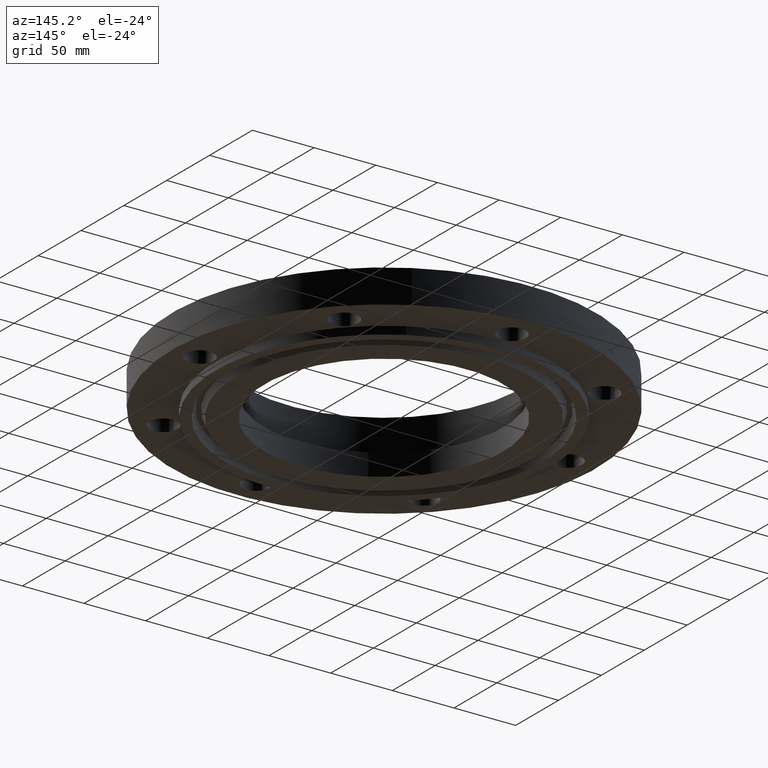
[diagram: clean part render]
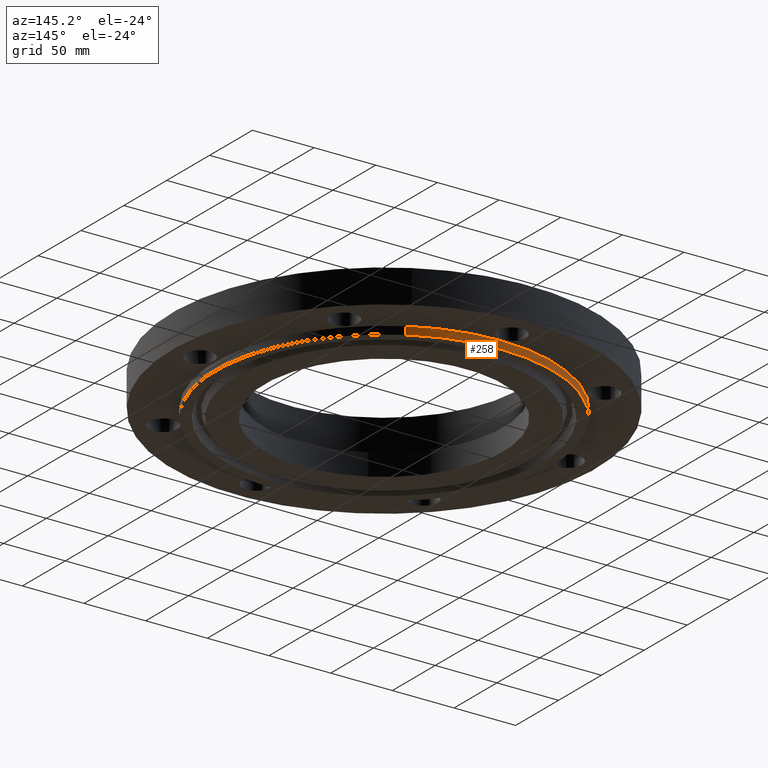
[diagram: same view with one face highlighted and labeled with its STEP entity id]
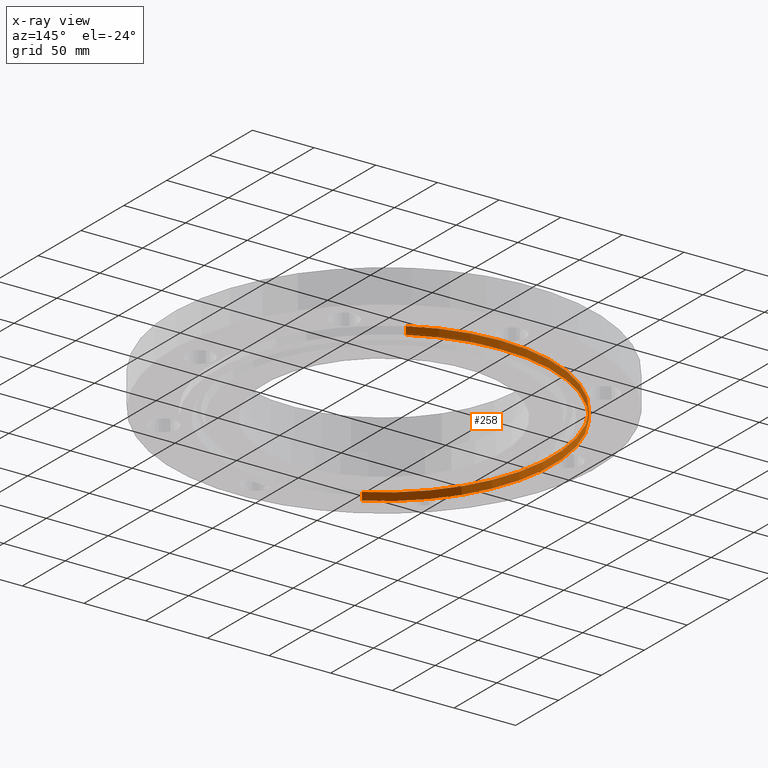
[diagram: x-ray of the same camera — body ghosted, the highlighted face saturated]
A machine part, auxiliary view. The second image highlights one B-rep face of the part: STEP entity #258.
The next image is the same camera in x-ray: the body ghosted, the highlighted face saturated — about 0% of this face is hidden behind the body in this view.
In plain terms, the highlighted cylindrical surface (partial cylindrical patch) has radius 136.525 mm, axis along (0, 0, -1).
Its self-contained STEP definition (entity closure, byte-faithful):
#193=AXIS2_PLACEMENT_3D('Circle Axis2P3D',#191,#192,$) ;
#231=AXIS2_PLACEMENT_3D('Cylinder Axis2P3D',#228,#229,#230) ;
#242=AXIS2_PLACEMENT_3D('Circle Axis2P3D',#240,#241,$) ;
#191=CARTESIAN_POINT('Axis2P3D Location',(0.,0.,-0.250000000001)) ;
#195=CARTESIAN_POINT('Vertex',(-2.57691227001,-4.71700627018,-0.250000000001)) ;
#197=CARTESIAN_POINT('Vertex',(2.57691227001,4.71700627018,-0.250000000001)) ;
#228=CARTESIAN_POINT('Axis2P3D Location',(0.,0.,0.720000000003)) ;
#233=CARTESIAN_POINT('Line Origine',(-2.57691227001,-4.71700627018,-0.125)) ;
#237=CARTESIAN_POINT('Vertex',(-2.57691227001,-4.71700627018,5.59482469102E-016)) ;
#240=CARTESIAN_POINT('Axis2P3D Location',(0.,0.,5.59482469102E-016)) ;
#244=CARTESIAN_POINT('Vertex',(2.57691227001,4.71700627018,5.59482469102E-016)) ;
#247=CARTESIAN_POINT('Line Origine',(2.57691227001,4.71700627018,-0.125)) ;
#192=DIRECTION('Axis2P3D Direction',(0.,0.,-0.0393700787402)) ;
#229=DIRECTION('Axis2P3D Direction',(0.,0.,-0.0393700787402)) ;
#230=DIRECTION('Axis2P3D XDirection',(0.0188750212049,0.0345504945626,0.)) ;
#234=DIRECTION('Vector Direction',(0.,0.,-0.0393700787402)) ;
#241=DIRECTION('Axis2P3D Direction',(0.,0.,-0.0393700787402)) ;
#248=DIRECTION('Vector Direction',(0.,0.,-0.0393700787402)) ;
#235=VECTOR('Line Direction',#234,0.0393700787402) ;
#249=VECTOR('Line Direction',#248,0.0393700787402) ;
#253=ORIENTED_EDGE('',*,*,#199,.F.) ;
#254=ORIENTED_EDGE('',*,*,#239,.T.) ;
#255=ORIENTED_EDGE('',*,*,#246,.T.) ;
#256=ORIENTED_EDGE('',*,*,#251,.F.) ;
#258=ADVANCED_FACE('PartBody',(#257),#232,.T.) ;
#194=CIRCLE('generated circle',#193,5.37500000002) ;
#243=CIRCLE('generated circle',#242,5.37500000002) ;
#232=CYLINDRICAL_SURFACE('generated cylinder',#231,5.37500000002) ;
#199=EDGE_CURVE('',#196,#198,#194,.T.) ;
#239=EDGE_CURVE('',#196,#238,#236,.F.) ;
#246=EDGE_CURVE('',#238,#245,#243,.T.) ;
#251=EDGE_CURVE('',#198,#245,#250,.F.) ;
#252=EDGE_LOOP('',(#253,#254,#255,#256)) ;
#257=FACE_OUTER_BOUND('',#252,.T.) ;
#236=LINE('Line',#233,#235) ;
#250=LINE('Line',#247,#249) ;
#196=VERTEX_POINT('',#195) ;
#198=VERTEX_POINT('',#197) ;
#238=VERTEX_POINT('',#237) ;
#245=VERTEX_POINT('',#244) ;